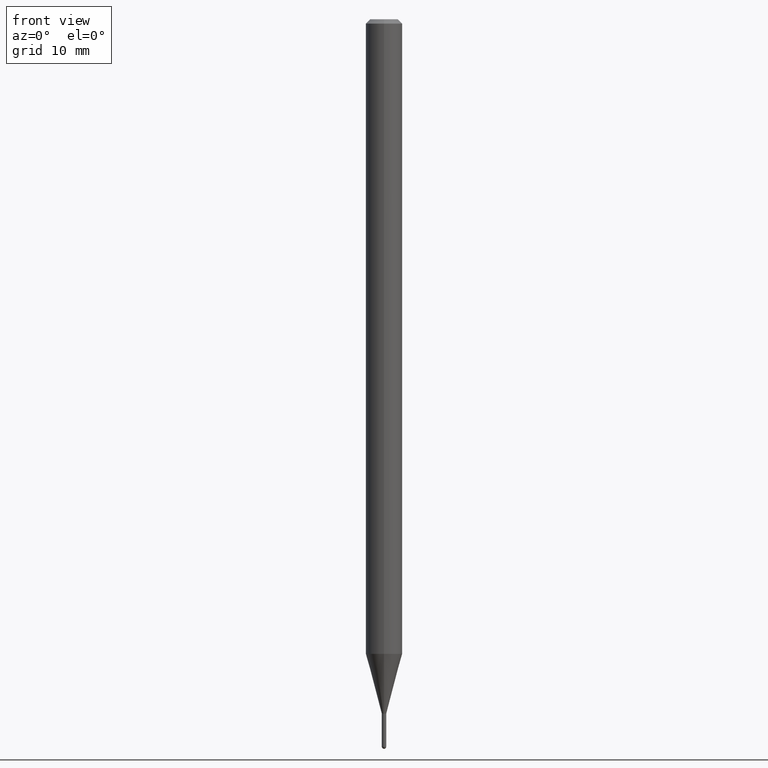
[diagram: clean part render]
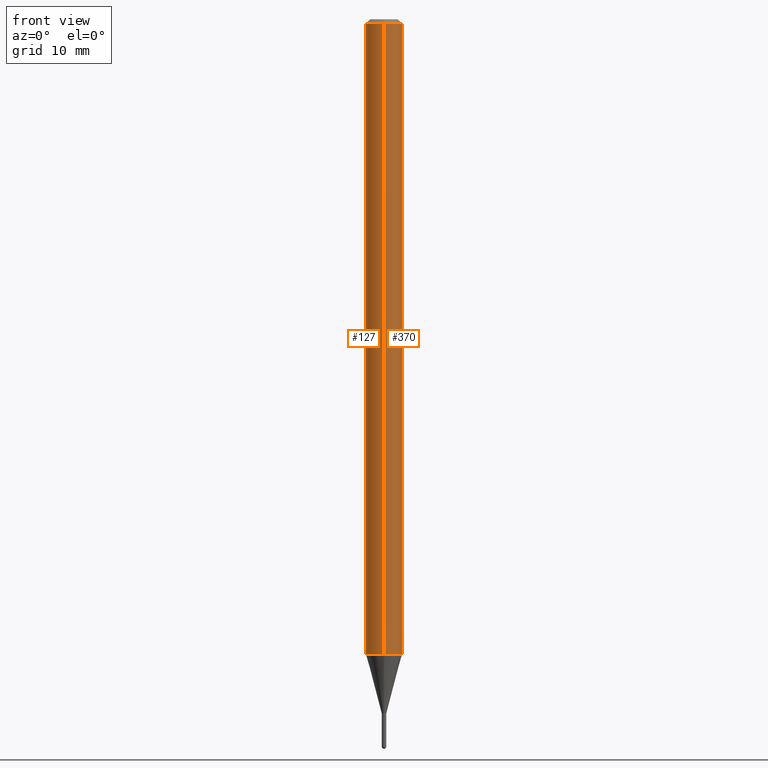
[diagram: same view with one multi-face feature highlighted, each face labeled with its STEP entity id]
A machine part, front view. The highlighted faces form ONE feature: a constant-radius fillet chain: 2 tangent blend faces with common blend radius 1.5875 mm. The faces share edges in the B-rep.
Their STEP definitions:
[1] entity #370 (Cylinder):
#25 = AXIS2_PLACEMENT_3D ( 'NONE', #431, #361, #273 ) ;
#38 = DIRECTION ( 'NONE',  ( -6.982962677686265922E-15, -1.000000000000000000, 3.491450350249176608E-15 ) ) ;
#44 = CYLINDRICAL_SURFACE ( 'NONE', #213, 0.06250000000000000000 ) ;
#46 = EDGE_CURVE ( 'NONE', #91, #148, #352, .T. ) ;
#60 = EDGE_CURVE ( 'NONE', #443, #91, #76, .T. ) ;
#63 = VECTOR ( 'NONE', #158, 39.37007874015748143 ) ;
#74 = FACE_OUTER_BOUND ( 'NONE', #94, .T. ) ;
#76 = CIRCLE ( 'NONE', #25, 0.06250000000000000000 ) ;
#88 = VECTOR ( 'NONE', #261, 39.37007874015748143 ) ;
#91 = VERTEX_POINT ( 'NONE', #508 ) ;
#94 = EDGE_LOOP ( 'NONE', ( #102, #311, #137, #400 ) ) ;
#102 = ORIENTED_EDGE ( 'NONE', *, *, #60, .T. ) ;
#107 = CARTESIAN_POINT ( 'NONE',  ( -4.364351673553916201E-16, -0.06250000000000000000, 2.182156468905735380E-16 ) ) ;
#128 = DIRECTION ( 'NONE',  ( -6.982962677686265922E-15, -1.000000000000000000, 3.483106191921935554E-15 ) ) ;
#137 = ORIENTED_EDGE ( 'NONE', *, *, #272, .F. ) ;
#142 = CARTESIAN_POINT ( 'NONE',  ( -4.364351673553912750E-16, -0.06250000000000005551, -0.01499999999999979128 ) ) ;
#148 = VERTEX_POINT ( 'NONE', #415 ) ;
#158 = DIRECTION ( 'NONE',  ( -2.445490445404648555E-29, 3.491450350249176608E-15, 1.000000000000000000 ) ) ;
#182 = EDGE_CURVE ( 'NONE', #443, #483, #301, .T. ) ;
#183 = AXIS2_PLACEMENT_3D ( 'NONE', #444, #360, #128 ) ;
#213 = AXIS2_PLACEMENT_3D ( 'NONE', #439, #232, #38 ) ;
#232 = DIRECTION ( 'NONE',  ( -2.445490445404648555E-29, 3.491450350249176608E-15, 1.000000000000000000 ) ) ;
#261 = DIRECTION ( 'NONE',  ( -2.445490445404648555E-29, 3.491450350249176608E-15, 1.000000000000000000 ) ) ;
#272 = EDGE_CURVE ( 'NONE', #483, #148, #471, .T. ) ;
#273 = DIRECTION ( 'NONE',  ( -6.982962677686265922E-15, -1.000000000000000000, 4.370956789862821150E-15 ) ) ;
#301 = LINE ( 'NONE', #107, #88 ) ;
#311 = ORIENTED_EDGE ( 'NONE', *, *, #46, .T. ) ;
#352 = LINE ( 'NONE', #510, #63 ) ;
#360 = DIRECTION ( 'NONE',  ( -2.445490445404648555E-29, 3.491450350249176608E-15, 1.000000000000000000 ) ) ;
#361 = DIRECTION ( 'NONE',  ( -2.445490445404648555E-29, 3.491450350249176608E-15, 1.000000000000000000 ) ) ;
#366 = CARTESIAN_POINT ( 'NONE',  ( -4.364351673553386185E-16, -0.06250000000000760503, -2.174737205583718858 ) ) ;
#370 = ADVANCED_FACE ( 'NONE', ( #74 ), #44, .T. ) ;
#400 = ORIENTED_EDGE ( 'NONE', *, *, #182, .F. ) ;
#415 = CARTESIAN_POINT ( 'NONE',  ( 4.440892098501161601E-16, 0.06249999999999995143, -0.01500000000000022669 ) ) ;
#431 = CARTESIAN_POINT ( 'NONE',  ( 5.318299057520989727E-29, -7.592986978135192084E-15, -2.174737205583719302 ) ) ;
#439 = CARTESIAN_POINT ( 'NONE',  ( 0.000000000000000000, 0.000000000000000000, 0.000000000000000000 ) ) ;
#443 = VERTEX_POINT ( 'NONE', #366 ) ;
#444 = CARTESIAN_POINT ( 'NONE',  ( 3.668235668106974794E-31, -5.237175525373768264E-17, -0.01500000000000000812 ) ) ;
#471 = CIRCLE ( 'NONE', #183, 0.06250000000000000000 ) ;
#483 = VERTEX_POINT ( 'NONE', #142 ) ;
#508 = CARTESIAN_POINT ( 'NONE',  ( 4.440892098501156671E-16, 0.06249999999999240885, -2.174737205583719746 ) ) ;
#510 = CARTESIAN_POINT ( 'NONE',  ( 4.440892098500625669E-16, 0.06250000000000000000, -2.182156468905735380E-16 ) ) ;
[2] entity #127 (Cylinder):
#29 = ORIENTED_EDGE ( 'NONE', *, *, #182, .T. ) ;
#34 = DIRECTION ( 'NONE',  ( -6.982962677686265922E-15, -1.000000000000000000, 3.483106191921935554E-15 ) ) ;
#46 = EDGE_CURVE ( 'NONE', #91, #148, #352, .T. ) ;
#47 = CIRCLE ( 'NONE', #95, 0.06250000000000000000 ) ;
#52 = CARTESIAN_POINT ( 'NONE',  ( 5.318299057520989727E-29, -7.592986978135192084E-15, -2.174737205583719302 ) ) ;
#59 = AXIS2_PLACEMENT_3D ( 'NONE', #67, #388, #34 ) ;
#63 = VECTOR ( 'NONE', #158, 39.37007874015748143 ) ;
#67 = CARTESIAN_POINT ( 'NONE',  ( 3.668235668106974794E-31, -5.237175525373768264E-17, -0.01500000000000000812 ) ) ;
#88 = VECTOR ( 'NONE', #261, 39.37007874015748143 ) ;
#91 = VERTEX_POINT ( 'NONE', #508 ) ;
#95 = AXIS2_PLACEMENT_3D ( 'NONE', #52, #491, #372 ) ;
#107 = CARTESIAN_POINT ( 'NONE',  ( -4.364351673553916201E-16, -0.06250000000000000000, 2.182156468905735380E-16 ) ) ;
#110 = EDGE_CURVE ( 'NONE', #91, #443, #47, .T. ) ;
#115 = AXIS2_PLACEMENT_3D ( 'NONE', #411, #218, #138 ) ;
#127 = ADVANCED_FACE ( 'NONE', ( #214 ), #247, .T. ) ;
#138 = DIRECTION ( 'NONE',  ( -6.982962677686265922E-15, -1.000000000000000000, 3.491450350249176608E-15 ) ) ;
#141 = CIRCLE ( 'NONE', #59, 0.06250000000000000000 ) ;
#142 = CARTESIAN_POINT ( 'NONE',  ( -4.364351673553912750E-16, -0.06250000000000005551, -0.01499999999999979128 ) ) ;
#148 = VERTEX_POINT ( 'NONE', #415 ) ;
#157 = ORIENTED_EDGE ( 'NONE', *, *, #222, .F. ) ;
#158 = DIRECTION ( 'NONE',  ( -2.445490445404648555E-29, 3.491450350249176608E-15, 1.000000000000000000 ) ) ;
#160 = ORIENTED_EDGE ( 'NONE', *, *, #46, .F. ) ;
#182 = EDGE_CURVE ( 'NONE', #443, #483, #301, .T. ) ;
#214 = FACE_OUTER_BOUND ( 'NONE', #234, .T. ) ;
#218 = DIRECTION ( 'NONE',  ( -2.445490445404648555E-29, 3.491450350249176608E-15, 1.000000000000000000 ) ) ;
#222 = EDGE_CURVE ( 'NONE', #148, #483, #141, .T. ) ;
#234 = EDGE_LOOP ( 'NONE', ( #160, #340, #29, #157 ) ) ;
#247 = CYLINDRICAL_SURFACE ( 'NONE', #115, 0.06250000000000000000 ) ;
#261 = DIRECTION ( 'NONE',  ( -2.445490445404648555E-29, 3.491450350249176608E-15, 1.000000000000000000 ) ) ;
#301 = LINE ( 'NONE', #107, #88 ) ;
#340 = ORIENTED_EDGE ( 'NONE', *, *, #110, .T. ) ;
#352 = LINE ( 'NONE', #510, #63 ) ;
#366 = CARTESIAN_POINT ( 'NONE',  ( -4.364351673553386185E-16, -0.06250000000000760503, -2.174737205583718858 ) ) ;
#372 = DIRECTION ( 'NONE',  ( -6.982962677686265922E-15, -1.000000000000000000, 4.370956789862821150E-15 ) ) ;
#388 = DIRECTION ( 'NONE',  ( -2.445490445404648555E-29, 3.491450350249176608E-15, 1.000000000000000000 ) ) ;
#411 = CARTESIAN_POINT ( 'NONE',  ( 0.000000000000000000, 0.000000000000000000, 0.000000000000000000 ) ) ;
#415 = CARTESIAN_POINT ( 'NONE',  ( 4.440892098501161601E-16, 0.06249999999999995143, -0.01500000000000022669 ) ) ;
#443 = VERTEX_POINT ( 'NONE', #366 ) ;
#483 = VERTEX_POINT ( 'NONE', #142 ) ;
#491 = DIRECTION ( 'NONE',  ( -2.445490445404648555E-29, 3.491450350249176608E-15, 1.000000000000000000 ) ) ;
#508 = CARTESIAN_POINT ( 'NONE',  ( 4.440892098501156671E-16, 0.06249999999999240885, -2.174737205583719746 ) ) ;
#510 = CARTESIAN_POINT ( 'NONE',  ( 4.440892098500625669E-16, 0.06250000000000000000, -2.182156468905735380E-16 ) ) ;